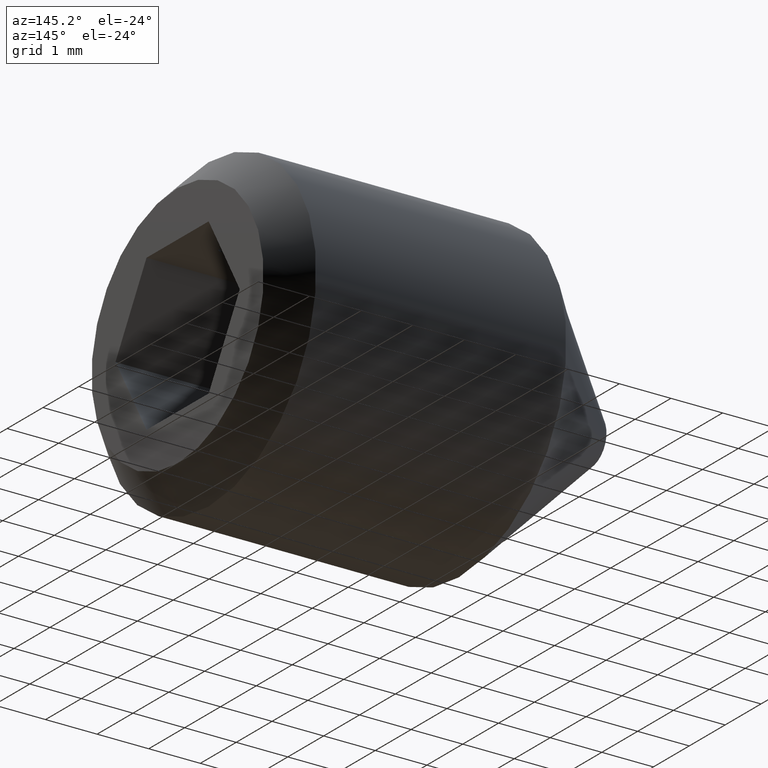
[diagram: clean part render]
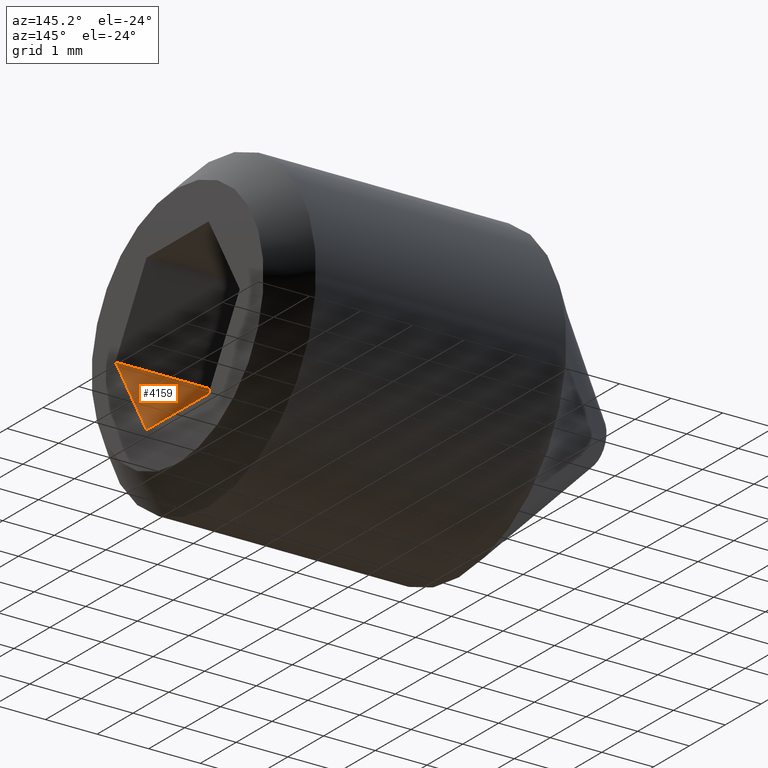
[diagram: same view with one face highlighted and labeled with its STEP entity id]
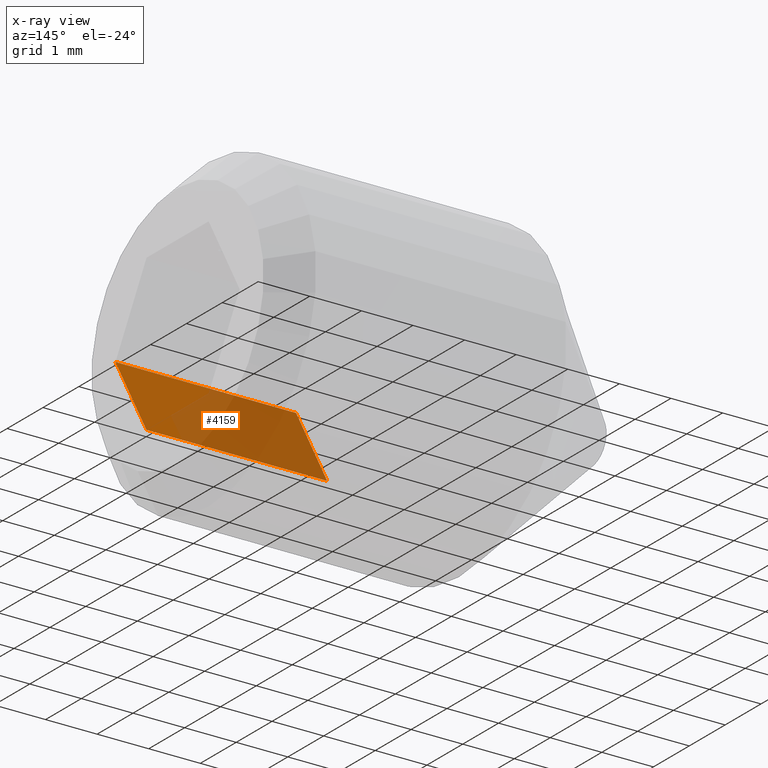
[diagram: x-ray of the same camera — body ghosted, the highlighted face saturated]
A machine part, auxiliary view. The second image highlights one B-rep face of the part: STEP entity #4159.
The next image is the same camera in x-ray: the body ghosted, the highlighted face saturated — about 69% of this face is hidden behind the body in this view.
In plain terms, the highlighted planar face has unit normal (0, -0.866, -0.5).
Its self-contained STEP definition (entity closure, byte-faithful):
#20 = ORIENTED_EDGE ( 'NONE', *, *, #869, .F. ) ;
#300 = CARTESIAN_POINT ( 'NONE',  ( 4.500000000000000900, -0.8660254037844388200, -1.500000000000000000 ) ) ;
#306 = VECTOR ( 'NONE', #6177, 1000.000000000000000 ) ;
#405 = LINE ( 'NONE', #9960, #10383 ) ;
#554 = CARTESIAN_POINT ( 'NONE',  ( 8.000000000000000000, -1.732050807568877200, 5.421010862427522200E-016 ) ) ;
#869 = EDGE_CURVE ( 'NONE', #1072, #2380, #405, .T. ) ;
#1072 = VERTEX_POINT ( 'NONE', #8646 ) ;
#1088 = FACE_OUTER_BOUND ( 'NONE', #6846, .T. ) ;
#1097 = LINE ( 'NONE', #3306, #10159 ) ;
#1298 = CARTESIAN_POINT ( 'NONE',  ( 8.000000000000000000, -0.8660254037844388200, -1.499999999999999800 ) ) ;
#1960 = DIRECTION ( 'NONE',  ( 1.000000000000000000, -0.0000000000000000000, 6.123031769111886300E-017 ) ) ;
#2267 = ORIENTED_EDGE ( 'NONE', *, *, #7960, .F. ) ;
#2380 = VERTEX_POINT ( 'NONE', #9559 ) ;
#2457 = VERTEX_POINT ( 'NONE', #554 ) ;
#3214 = PLANE ( 'NONE',  #5245 ) ;
#3306 = CARTESIAN_POINT ( 'NONE',  ( 8.000000000000000000, -1.732050807568877000, 4.566523201967821500E-016 ) ) ;
#3591 = ORIENTED_EDGE ( 'NONE', *, *, #4837, .T. ) ;
#4150 = DIRECTION ( 'NONE',  ( 0.0000000000000000000, 0.4999999999999997200, -0.8660254037844388200 ) ) ;
#4159 = ADVANCED_FACE ( 'NONE', ( #1088 ), #3214, .F. ) ;
#4837 = EDGE_CURVE ( 'NONE', #2457, #10233, #1097, .T. ) ;
#5122 = EDGE_CURVE ( 'NONE', #1072, #2457, #6237, .T. ) ;
#5245 = AXIS2_PLACEMENT_3D ( 'NONE', #9086, #8113, #8947 ) ;
#6177 = DIRECTION ( 'NONE',  ( 1.000000000000000000, -0.0000000000000000000, 6.123031769111886300E-017 ) ) ;
#6237 = LINE ( 'NONE', #7014, #8593 ) ;
#6846 = EDGE_LOOP ( 'NONE', ( #3591, #2267, #20, #9222 ) ) ;
#7014 = CARTESIAN_POINT ( 'NONE',  ( 4.500000000000000900, -1.732050807568877000, 2.423462082778660800E-016 ) ) ;
#7300 = LINE ( 'NONE', #300, #306 ) ;
#7960 = EDGE_CURVE ( 'NONE', #2380, #10233, #7300, .T. ) ;
#8113 = DIRECTION ( 'NONE',  ( 3.061515884555941900E-017, -0.8660254037844388200, -0.4999999999999997800 ) ) ;
#8593 = VECTOR ( 'NONE', #1960, 1000.000000000000000 ) ;
#8646 = CARTESIAN_POINT ( 'NONE',  ( 4.500000000000000900, -1.732050807568877000, 2.423462082778660800E-016 ) ) ;
#8947 = DIRECTION ( 'NONE',  ( 0.0000000000000000000, 0.4999999999999997800, -0.8660254037844388200 ) ) ;
#9086 = CARTESIAN_POINT ( 'NONE',  ( 4.500000000000000900, -1.732050807568877000, 2.423462082778660800E-016 ) ) ;
#9222 = ORIENTED_EDGE ( 'NONE', *, *, #5122, .T. ) ;
#9339 = DIRECTION ( 'NONE',  ( 0.0000000000000000000, 0.4999999999999997200, -0.8660254037844388200 ) ) ;
#9559 = CARTESIAN_POINT ( 'NONE',  ( 4.500000000000000900, -0.8660254037844388200, -1.500000000000000000 ) ) ;
#9960 = CARTESIAN_POINT ( 'NONE',  ( 4.500000000000000900, -1.732050807568877000, 2.423462082778660800E-016 ) ) ;
#10159 = VECTOR ( 'NONE', #4150, 1000.000000000000100 ) ;
#10233 = VERTEX_POINT ( 'NONE', #1298 ) ;
#10383 = VECTOR ( 'NONE', #9339, 1000.000000000000100 ) ;